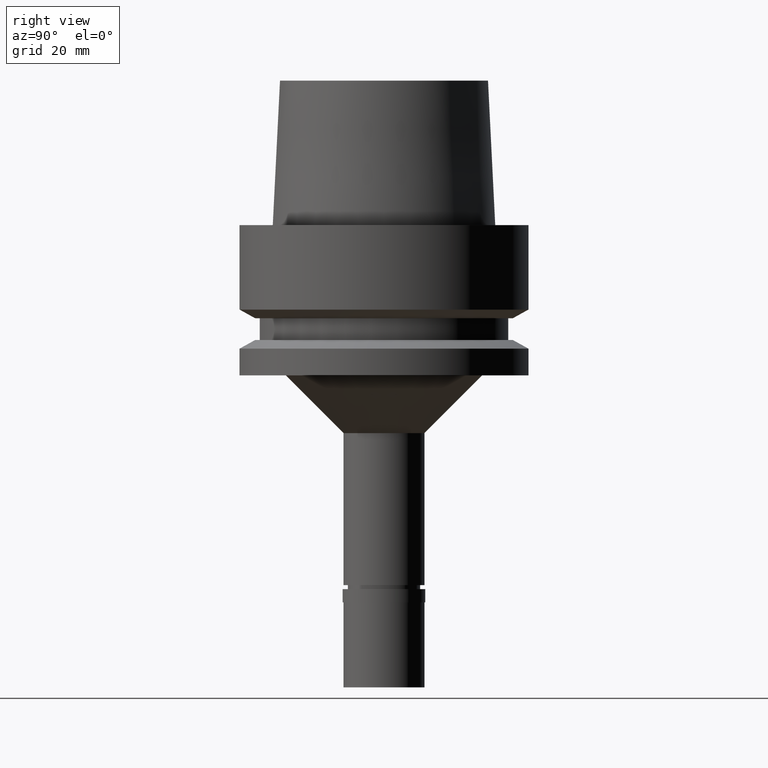
[diagram: clean part render]
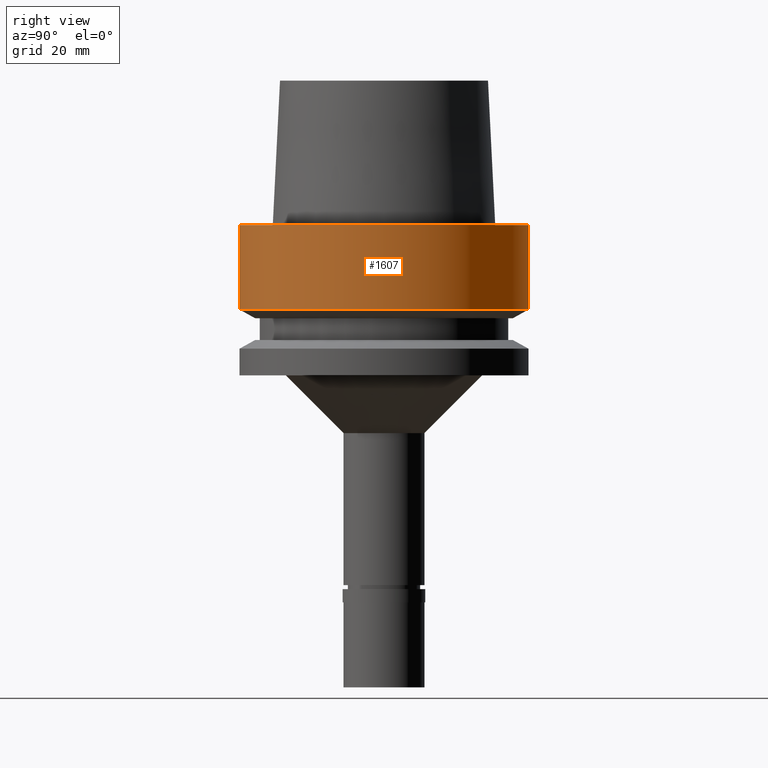
[diagram: same view with one face highlighted and labeled with its STEP entity id]
A machine part, right view. The second image highlights one B-rep face of the part: STEP entity #1607.
In plain terms, the highlighted cylindrical surface (partial cylindrical patch) has radius 25 mm, axis along (0, 0, 1).
Its self-contained STEP definition (entity closure, byte-faithful):
#167 = CARTESIAN_POINT ( 'NONE',  ( 0.0000000000000000000, 0.0000000000000000000, 1.705302565823999875E-13 ) ) ;
#256 = EDGE_CURVE ( 'NONE', #1182, #554, #753, .T. ) ;
#271 = CIRCLE ( 'NONE', #1535, 25.00000000000000000 ) ;
#327 = CARTESIAN_POINT ( 'NONE',  ( 0.0000000000000000000, 25.00000000000000000, 1.136868377215999875E-13 ) ) ;
#382 = CARTESIAN_POINT ( 'NONE',  ( 0.0000000000000000000, 25.00000000000000000, -14.61835441913999922 ) ) ;
#385 = CARTESIAN_POINT ( 'NONE',  ( 0.0000000000000000000, 0.0000000000000000000, -14.61835441913999922 ) ) ;
#527 = VECTOR ( 'NONE', #1342, 1000.000000000000000 ) ;
#541 = EDGE_CURVE ( 'NONE', #1182, #666, #1742, .T. ) ;
#554 = VERTEX_POINT ( 'NONE', #382 ) ;
#574 = AXIS2_PLACEMENT_3D ( 'NONE', #2583, #662, #1101 ) ;
#662 = DIRECTION ( 'NONE',  ( 0.0000000000000000000, 0.0000000000000000000, 1.000000000000000000 ) ) ;
#666 = VERTEX_POINT ( 'NONE', #1710 ) ;
#717 = CARTESIAN_POINT ( 'NONE',  ( 0.0000000000000000000, -25.00000000000000000, 1.136868377215999875E-13 ) ) ;
#753 = LINE ( 'NONE', #327, #1173 ) ;
#865 = ORIENTED_EDGE ( 'NONE', *, *, #256, .F. ) ;
#1061 = EDGE_CURVE ( 'NONE', #666, #1722, #2620, .T. ) ;
#1101 = DIRECTION ( 'NONE',  ( 0.0000000000000000000, 1.000000000000000000, 0.0000000000000000000 ) ) ;
#1173 = VECTOR ( 'NONE', #1771, 1000.000000000000000 ) ;
#1182 = VERTEX_POINT ( 'NONE', #2640 ) ;
#1233 = DIRECTION ( 'NONE',  ( 0.0000000000000000000, 1.000000000000000000, 0.0000000000000000000 ) ) ;
#1259 = DIRECTION ( 'NONE',  ( 0.0000000000000000000, 0.0000000000000000000, -1.000000000000000000 ) ) ;
#1276 = ORIENTED_EDGE ( 'NONE', *, *, #541, .T. ) ;
#1330 = FACE_OUTER_BOUND ( 'NONE', #2287, .T. ) ;
#1342 = DIRECTION ( 'NONE',  ( 0.0000000000000000000, 0.0000000000000000000, -1.000000000000000000 ) ) ;
#1535 = AXIS2_PLACEMENT_3D ( 'NONE', #385, #1593, #1603 ) ;
#1593 = DIRECTION ( 'NONE',  ( 0.0000000000000000000, 0.0000000000000000000, 1.000000000000000000 ) ) ;
#1603 = DIRECTION ( 'NONE',  ( 0.0000000000000000000, -1.000000000000000000, 0.0000000000000000000 ) ) ;
#1607 = ADVANCED_FACE ( 'NONE', ( #1330 ), #1740, .T. ) ;
#1710 = CARTESIAN_POINT ( 'NONE',  ( 0.0000000000000000000, -25.00000000000000000, 1.705302565823999875E-13 ) ) ;
#1722 = VERTEX_POINT ( 'NONE', #1759 ) ;
#1740 = CYLINDRICAL_SURFACE ( 'NONE', #574, 25.00000000000000000 ) ;
#1742 = CIRCLE ( 'NONE', #2221, 25.00000000000000000 ) ;
#1759 = CARTESIAN_POINT ( 'NONE',  ( 0.0000000000000000000, -25.00000000000000000, -14.61835441913999922 ) ) ;
#1771 = DIRECTION ( 'NONE',  ( 0.0000000000000000000, 0.0000000000000000000, -1.000000000000000000 ) ) ;
#2126 = EDGE_CURVE ( 'NONE', #1722, #554, #271, .T. ) ;
#2221 = AXIS2_PLACEMENT_3D ( 'NONE', #167, #1259, #1233 ) ;
#2272 = ORIENTED_EDGE ( 'NONE', *, *, #1061, .T. ) ;
#2287 = EDGE_LOOP ( 'NONE', ( #1276, #2272, #2621, #865 ) ) ;
#2583 = CARTESIAN_POINT ( 'NONE',  ( 0.0000000000000000000, 0.0000000000000000000, -81.04999999999999716 ) ) ;
#2620 = LINE ( 'NONE', #717, #527 ) ;
#2621 = ORIENTED_EDGE ( 'NONE', *, *, #2126, .T. ) ;
#2640 = CARTESIAN_POINT ( 'NONE',  ( 0.0000000000000000000, 25.00000000000000000, 1.705302565823999875E-13 ) ) ;